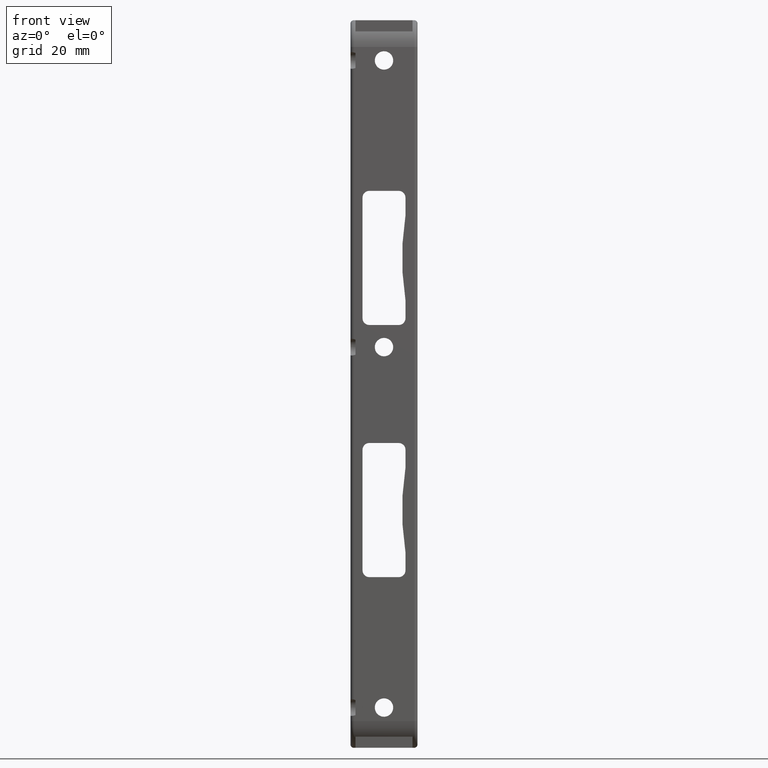
[diagram: clean part render]
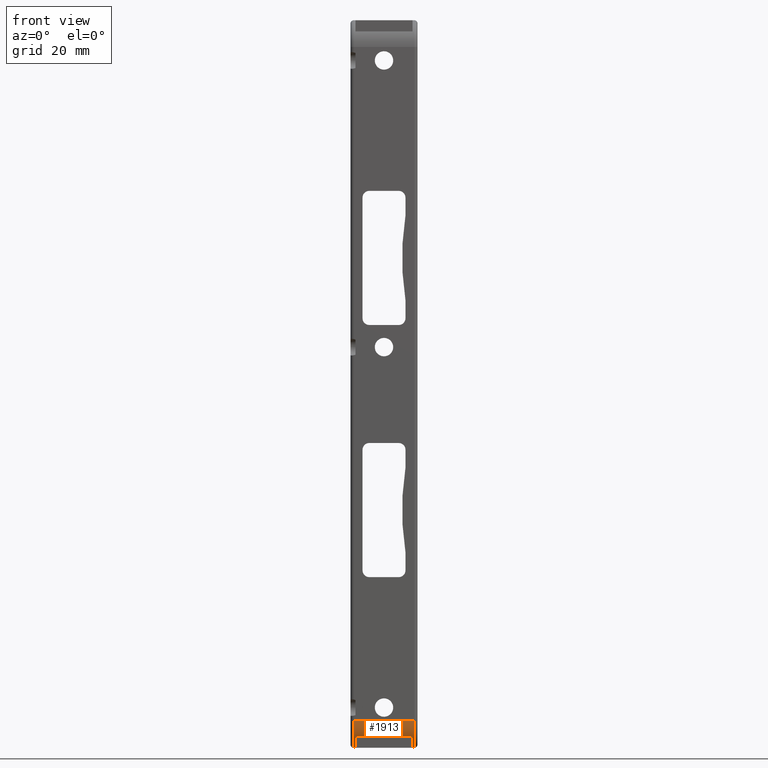
[diagram: same view with one face highlighted and labeled with its STEP entity id]
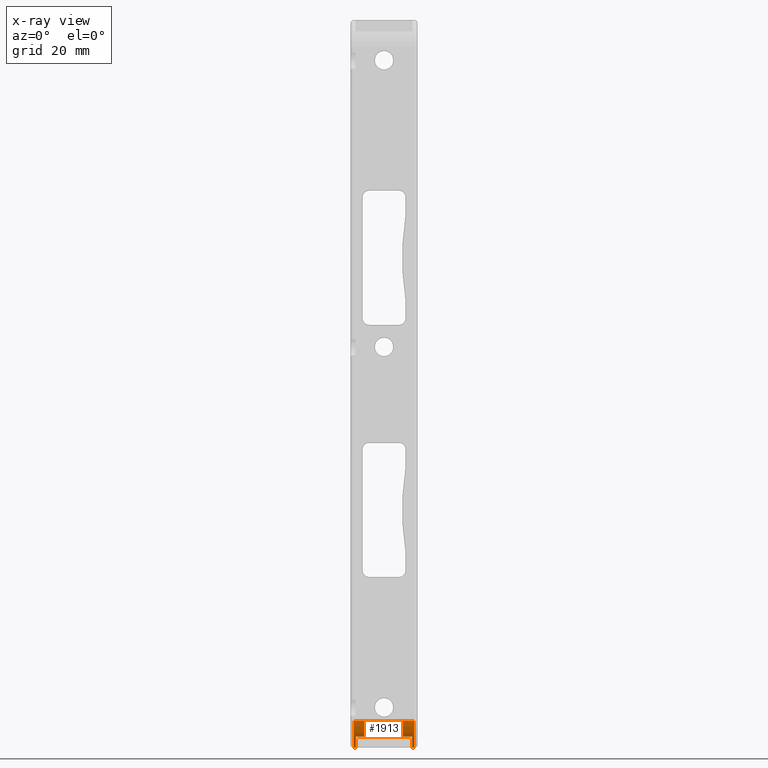
[diagram: x-ray of the same camera — body ghosted, the highlighted face saturated]
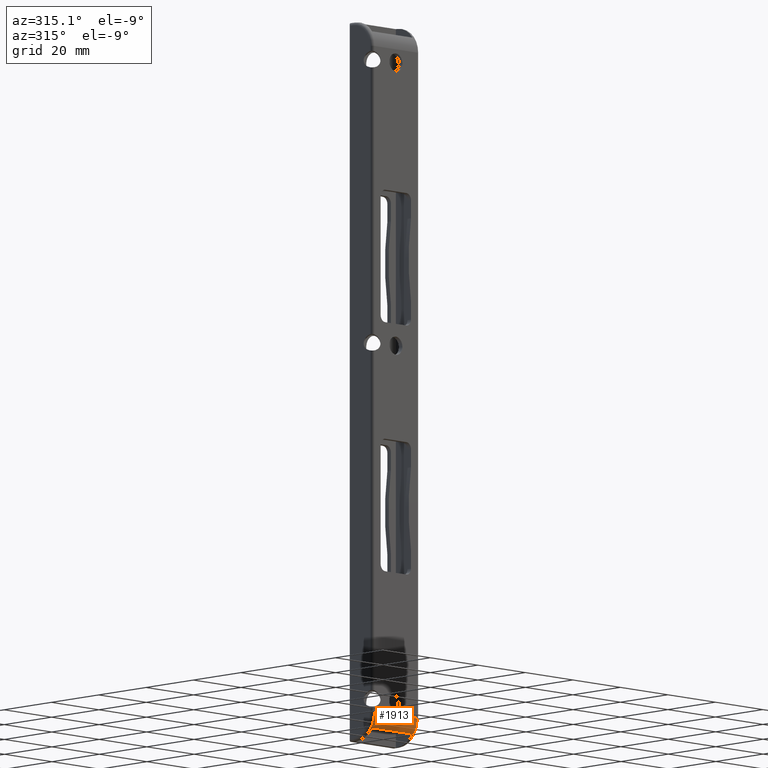
[diagram: same view with one face highlighted and labeled with its STEP entity id]
A machine part, front view. The second image highlights one B-rep face of the part: STEP entity #1913.
The next image is the same camera in x-ray: the body ghosted, the highlighted face saturated — about 0% of this face is hidden behind the body in this view.
A second angle (auxiliary view) of the same face is appended — the face is thin or edge-on in the first view.
In plain terms, the highlighted cylindrical surface (edge-blend (fillet) strip) has radius 8 mm, axis along (1, -0, 0).
Its self-contained STEP definition (entity closure, byte-faithful):
#50 = DIRECTION ( 'NONE',  ( -1.000000000000000000, 1.328655806570404533E-30, 0.000000000000000000 ) ) ;
#87 = CARTESIAN_POINT ( 'NONE',  ( 8.499999999999998224, 3.000000000000000888, -108.5000000000000000 ) ) ;
#198 = ORIENTED_EDGE ( 'NONE', *, *, #2175, .T. ) ;
#305 = CARTESIAN_POINT ( 'NONE',  ( 8.500000000000000000, -3.499999999999999556, -105.1636895265444167 ) ) ;
#354 = ORIENTED_EDGE ( 'NONE', *, *, #1718, .F. ) ;
#458 = DIRECTION ( 'NONE',  ( -2.168404344971008868E-16, 1.000000000000000000, 0.000000000000000000 ) ) ;
#514 = DIRECTION ( 'NONE',  ( 1.000000000000000000, -1.328655806570404533E-30, 0.000000000000000000 ) ) ;
#560 = EDGE_LOOP ( 'NONE', ( #2061, #2869, #2156, #198, #354, #1208, #2571, #865 ) ) ;
#702 = CARTESIAN_POINT ( 'NONE',  ( -6.933347799794049071E-30, 3.000000000000000888, -108.5000000000000000 ) ) ;
#717 = DIRECTION ( 'NONE',  ( 2.168404344971008868E-16, -1.000000000000000000, 0.000000000000000000 ) ) ;
#770 = CARTESIAN_POINT ( 'NONE',  ( -8.500000000000000000, -3.499999999999999556, -105.1636895265444309 ) ) ;
#865 = ORIENTED_EDGE ( 'NONE', *, *, #3208, .F. ) ;
#926 = LINE ( 'NONE', #702, #2288 ) ;
#928 = CARTESIAN_POINT ( 'NONE',  ( -9.000000000000001776, 3.000000000000000888, -108.5000000000000000 ) ) ;
#931 = EDGE_CURVE ( 'NONE', #1179, #3028, #1212, .T. ) ;
#958 = CYLINDRICAL_SURFACE ( 'NONE', #2184, 7.999999999999992895 ) ;
#1040 = EDGE_CURVE ( 'NONE', #1179, #1221, #2457, .T. ) ;
#1049 = DIRECTION ( 'NONE',  ( 0.000000000000000000, 0.000000000000000000, 1.000000000000000000 ) ) ;
#1066 = CARTESIAN_POINT ( 'NONE',  ( -10.00000000000000000, -4.999999999999999112, -100.5000000000000142 ) ) ;
#1089 = VERTEX_POINT ( 'NONE', #305 ) ;
#1106 = AXIS2_PLACEMENT_3D ( 'NONE', #3173, #1714, #458 ) ;
#1131 = EDGE_CURVE ( 'NONE', #2927, #1221, #2812, .T. ) ;
#1179 = VERTEX_POINT ( 'NONE', #1866 ) ;
#1208 = ORIENTED_EDGE ( 'NONE', *, *, #2276, .F. ) ;
#1212 = LINE ( 'NONE', #2730, #1781 ) ;
#1221 = VERTEX_POINT ( 'NONE', #1838 ) ;
#1231 = AXIS2_PLACEMENT_3D ( 'NONE', #3167, #3201, #717 ) ;
#1240 = FACE_OUTER_BOUND ( 'NONE', #560, .T. ) ;
#1447 = VERTEX_POINT ( 'NONE', #3018 ) ;
#1448 = DIRECTION ( 'NONE',  ( -1.000000000000000000, 1.328655806570404533E-30, -0.000000000000000000 ) ) ;
#1481 = AXIS2_PLACEMENT_3D ( 'NONE', #2509, #50, #1049 ) ;
#1503 = DIRECTION ( 'NONE',  ( 1.000000000000000000, 2.478176394252563885E-16, 0.000000000000000000 ) ) ;
#1673 = VECTOR ( 'NONE', #514, 1000.000000000000000 ) ;
#1699 = LINE ( 'NONE', #1737, #2125 ) ;
#1714 = DIRECTION ( 'NONE',  ( 1.000000000000000000, 1.734723475976793782E-16, 0.000000000000000000 ) ) ;
#1718 = EDGE_CURVE ( 'NONE', #1447, #3213, #926, .T. ) ;
#1737 = CARTESIAN_POINT ( 'NONE',  ( 8.500000000000000000, -3.499999999999999556, -105.1636895265444309 ) ) ;
#1779 = CIRCLE ( 'NONE', #2926, 8.000000000000000000 ) ;
#1781 = VECTOR ( 'NONE', #3205, 1000.000000000000000 ) ;
#1838 = CARTESIAN_POINT ( 'NONE',  ( 8.999999999999996447, -4.999999999999999112, -100.5000000000000142 ) ) ;
#1866 = CARTESIAN_POINT ( 'NONE',  ( 8.999999999999996447, 3.000000000000000888, -108.5000000000000000 ) ) ;
#1913 = ADVANCED_FACE ( 'NONE', ( #1240 ), #958, .T. ) ;
#1918 = CARTESIAN_POINT ( 'NONE',  ( -8.500000000000001776, 3.000000000000000888, -100.5000000000000142 ) ) ;
#1942 = DIRECTION ( 'NONE',  ( 0.000000000000000000, 0.000000000000000000, -1.000000000000000000 ) ) ;
#1944 = EDGE_CURVE ( 'NONE', #1089, #2824, #1699, .T. ) ;
#1997 = DIRECTION ( 'NONE',  ( -2.168404344971008868E-16, 1.000000000000000000, 0.000000000000000000 ) ) ;
#2061 = ORIENTED_EDGE ( 'NONE', *, *, #931, .F. ) ;
#2125 = VECTOR ( 'NONE', #2736, 1000.000000000000000 ) ;
#2156 = ORIENTED_EDGE ( 'NONE', *, *, #1131, .F. ) ;
#2175 = EDGE_CURVE ( 'NONE', #2927, #3213, #2716, .T. ) ;
#2184 = AXIS2_PLACEMENT_3D ( 'NONE', #2963, #2222, #1942 ) ;
#2205 = CIRCLE ( 'NONE', #1231, 8.000000000000000000 ) ;
#2222 = DIRECTION ( 'NONE',  ( 1.000000000000000000, -1.328655806570404533E-30, 0.000000000000000000 ) ) ;
#2276 = EDGE_CURVE ( 'NONE', #2824, #1447, #1779, .T. ) ;
#2288 = VECTOR ( 'NONE', #1448, 1000.000000000000000 ) ;
#2457 = CIRCLE ( 'NONE', #1481, 7.999999999999992895 ) ;
#2509 = CARTESIAN_POINT ( 'NONE',  ( 8.999999999999996447, 3.000000000000000888, -100.5000000000000142 ) ) ;
#2571 = ORIENTED_EDGE ( 'NONE', *, *, #1944, .F. ) ;
#2716 = CIRCLE ( 'NONE', #1106, 8.000000000000000000 ) ;
#2730 = CARTESIAN_POINT ( 'NONE',  ( -6.933347799794049071E-30, 3.000000000000000888, -108.5000000000000000 ) ) ;
#2736 = DIRECTION ( 'NONE',  ( -1.000000000000000000, 1.328655806570404533E-30, -0.000000000000000000 ) ) ;
#2812 = LINE ( 'NONE', #1066, #1673 ) ;
#2824 = VERTEX_POINT ( 'NONE', #770 ) ;
#2860 = CARTESIAN_POINT ( 'NONE',  ( -9.000000000000000000, -4.999999999999999112, -100.5000000000000142 ) ) ;
#2869 = ORIENTED_EDGE ( 'NONE', *, *, #1040, .T. ) ;
#2926 = AXIS2_PLACEMENT_3D ( 'NONE', #1918, #1503, #1997 ) ;
#2927 = VERTEX_POINT ( 'NONE', #2860 ) ;
#2963 = CARTESIAN_POINT ( 'NONE',  ( -10.00000000000000000, 3.000000000000000888, -100.5000000000000142 ) ) ;
#3018 = CARTESIAN_POINT ( 'NONE',  ( -8.500000000000001776, 3.000000000000000888, -108.5000000000000000 ) ) ;
#3028 = VERTEX_POINT ( 'NONE', #87 ) ;
#3167 = CARTESIAN_POINT ( 'NONE',  ( 8.499999999999998224, 3.000000000000000888, -100.5000000000000142 ) ) ;
#3173 = CARTESIAN_POINT ( 'NONE',  ( -9.000000000000001776, 3.000000000000000888, -100.5000000000000142 ) ) ;
#3201 = DIRECTION ( 'NONE',  ( -1.000000000000000000, -2.478176394252563885E-16, 0.000000000000000000 ) ) ;
#3205 = DIRECTION ( 'NONE',  ( -1.000000000000000000, 1.328655806570404533E-30, -0.000000000000000000 ) ) ;
#3208 = EDGE_CURVE ( 'NONE', #3028, #1089, #2205, .T. ) ;
#3213 = VERTEX_POINT ( 'NONE', #928 ) ;